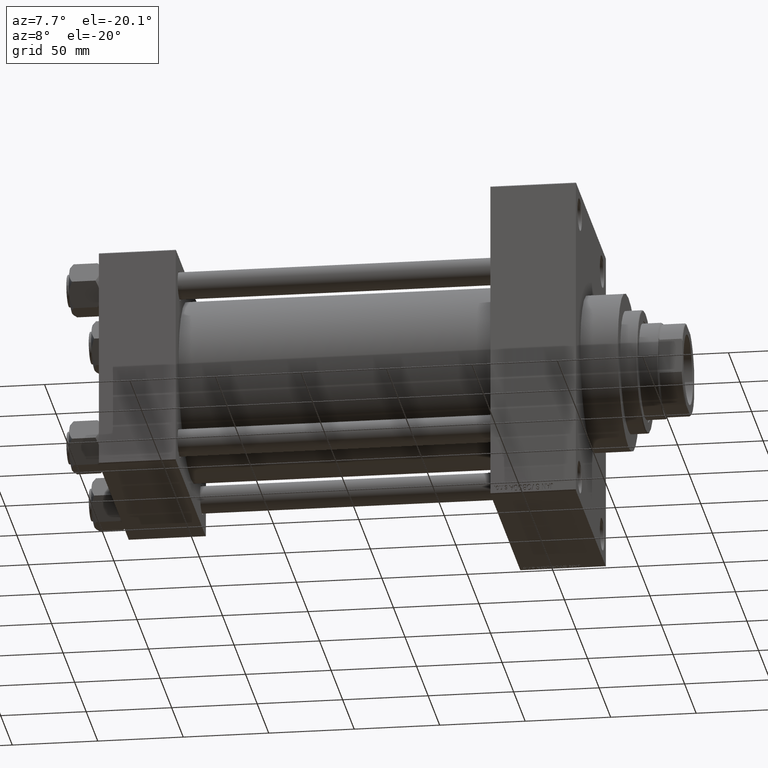
[diagram: clean part render]
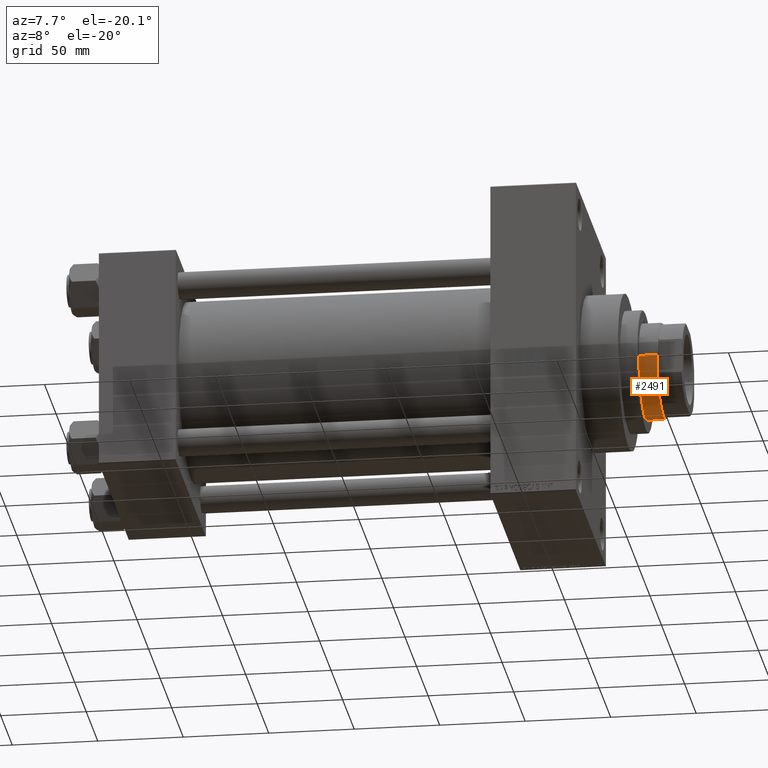
[diagram: same view with one face highlighted and labeled with its STEP entity id]
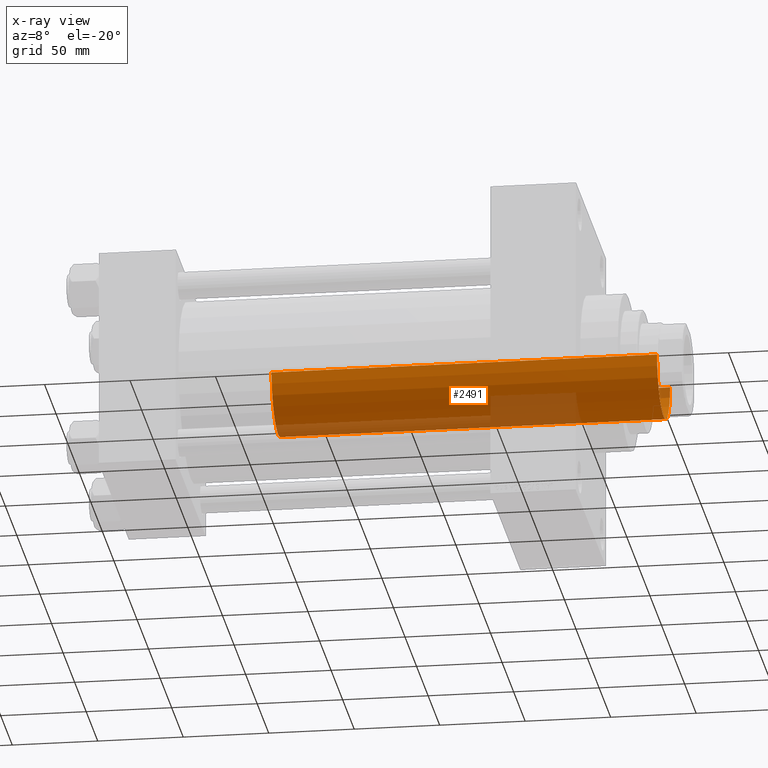
[diagram: x-ray of the same camera — body ghosted, the highlighted face saturated]
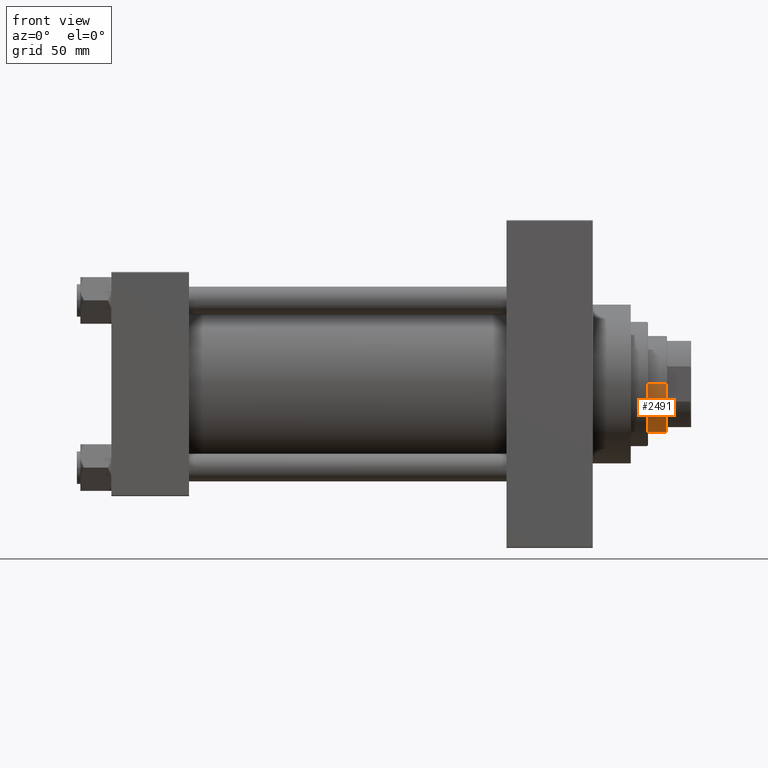
[diagram: same view with one face highlighted and labeled with its STEP entity id]
A machine part, auxiliary view. The second image highlights one B-rep face of the part: STEP entity #2491.
The next image is the same camera in x-ray: the body ghosted, the highlighted face saturated — about 21% of this face is hidden behind the body in this view.
A second angle (front view) of the same face is appended — the face is thin or edge-on in the first view.
In plain terms, the highlighted cylindrical surface (partial cylindrical patch) has radius 28 mm, axis along (-1, 0, 0).
Its self-contained STEP definition (entity closure, byte-faithful):
#401 = VERTEX_POINT ( 'NONE', #8329 ) ;
#1232 = CARTESIAN_POINT ( 'NONE',  ( -28.00000000000000000, 0.000000000000000000, 51.00000000000000000 ) ) ;
#1896 = VECTOR ( 'NONE', #7113, 1000.000000000000000 ) ;
#2491 = ADVANCED_FACE ( 'NONE', ( #18155 ), #7293, .T. ) ;
#4037 = DIRECTION ( 'NONE',  ( 0.000000000000000000, 0.000000000000000000, 1.000000000000000000 ) ) ;
#5152 = DIRECTION ( 'NONE',  ( 0.000000000000000000, 0.000000000000000000, -1.000000000000000000 ) ) ;
#6688 = ORIENTED_EDGE ( 'NONE', *, *, #33275, .T. ) ;
#7113 = DIRECTION ( 'NONE',  ( -0.000000000000000000, -0.000000000000000000, -1.000000000000000000 ) ) ;
#7293 = CYLINDRICAL_SURFACE ( 'NONE', #47080, 28.00000000000000000 ) ;
#7659 = DIRECTION ( 'NONE',  ( 1.000000000000000000, 0.000000000000000000, 0.000000000000000000 ) ) ;
#8329 = CARTESIAN_POINT ( 'NONE',  ( 28.00000000000000000, 3.429011037612589276E-15, 51.00000000000000000 ) ) ;
#10473 = CIRCLE ( 'NONE', #32821, 28.00000000000000000 ) ;
#10965 = CARTESIAN_POINT ( 'NONE',  ( -28.00000000000000000, 0.000000000000000000, 277.0000000000000000 ) ) ;
#13147 = EDGE_CURVE ( 'NONE', #44952, #23416, #40170, .T. ) ;
#13923 = ORIENTED_EDGE ( 'NONE', *, *, #30421, .T. ) ;
#14762 = CARTESIAN_POINT ( 'NONE',  ( 0.000000000000000000, 0.000000000000000000, 277.0000000000000000 ) ) ;
#15373 = CARTESIAN_POINT ( 'NONE',  ( 0.000000000000000000, 0.000000000000000000, 51.00000000000000000 ) ) ;
#15771 = CARTESIAN_POINT ( 'NONE',  ( 0.000000000000000000, 0.000000000000000000, 276.5000000000000568 ) ) ;
#18155 = FACE_OUTER_BOUND ( 'NONE', #19893, .T. ) ;
#19797 = CARTESIAN_POINT ( 'NONE',  ( 28.00000000000000000, 3.429011037612589276E-15, 277.0000000000000000 ) ) ;
#19893 = EDGE_LOOP ( 'NONE', ( #32831, #6688, #13923, #22443 ) ) ;
#20508 = LINE ( 'NONE', #19797, #23698 ) ;
#22212 = EDGE_CURVE ( 'NONE', #44952, #45214, #43745, .T. ) ;
#22443 = ORIENTED_EDGE ( 'NONE', *, *, #13147, .F. ) ;
#23416 = VERTEX_POINT ( 'NONE', #1232 ) ;
#23646 = DIRECTION ( 'NONE',  ( -0.000000000000000000, -0.000000000000000000, -1.000000000000000000 ) ) ;
#23698 = VECTOR ( 'NONE', #23646, 1000.000000000000000 ) ;
#23971 = DIRECTION ( 'NONE',  ( 1.000000000000000000, 0.000000000000000000, 0.000000000000000000 ) ) ;
#27983 = CARTESIAN_POINT ( 'NONE',  ( -28.00000000000000000, 0.000000000000000000, 276.5000000000000568 ) ) ;
#29002 = DIRECTION ( 'NONE',  ( -0.000000000000000000, -0.000000000000000000, -1.000000000000000000 ) ) ;
#29470 = DIRECTION ( 'NONE',  ( -1.000000000000000000, 0.000000000000000000, 0.000000000000000000 ) ) ;
#30421 = EDGE_CURVE ( 'NONE', #401, #23416, #10473, .T. ) ;
#32212 = CARTESIAN_POINT ( 'NONE',  ( 28.00000000000000000, 3.429011037612589276E-15, 276.5000000000000568 ) ) ;
#32821 = AXIS2_PLACEMENT_3D ( 'NONE', #15373, #4037, #7659 ) ;
#32831 = ORIENTED_EDGE ( 'NONE', *, *, #22212, .T. ) ;
#33275 = EDGE_CURVE ( 'NONE', #45214, #401, #20508, .T. ) ;
#33735 = AXIS2_PLACEMENT_3D ( 'NONE', #15771, #5152, #23971 ) ;
#40170 = LINE ( 'NONE', #10965, #1896 ) ;
#43745 = CIRCLE ( 'NONE', #33735, 28.00000000000000000 ) ;
#44952 = VERTEX_POINT ( 'NONE', #27983 ) ;
#45214 = VERTEX_POINT ( 'NONE', #32212 ) ;
#47080 = AXIS2_PLACEMENT_3D ( 'NONE', #14762, #29002, #29470 ) ;